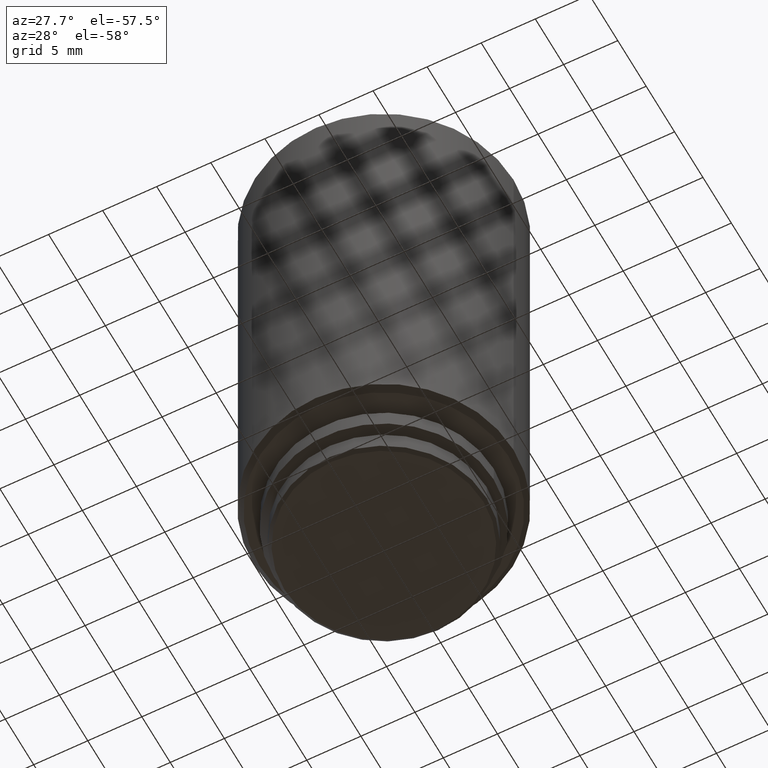
[diagram: clean part render]
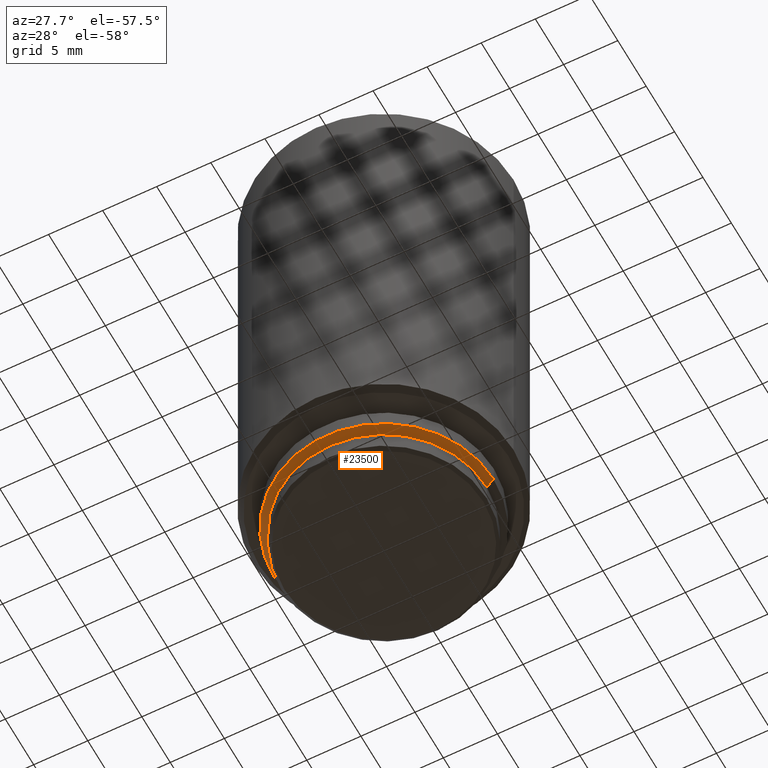
[diagram: same view with one face highlighted and labeled with its STEP entity id]
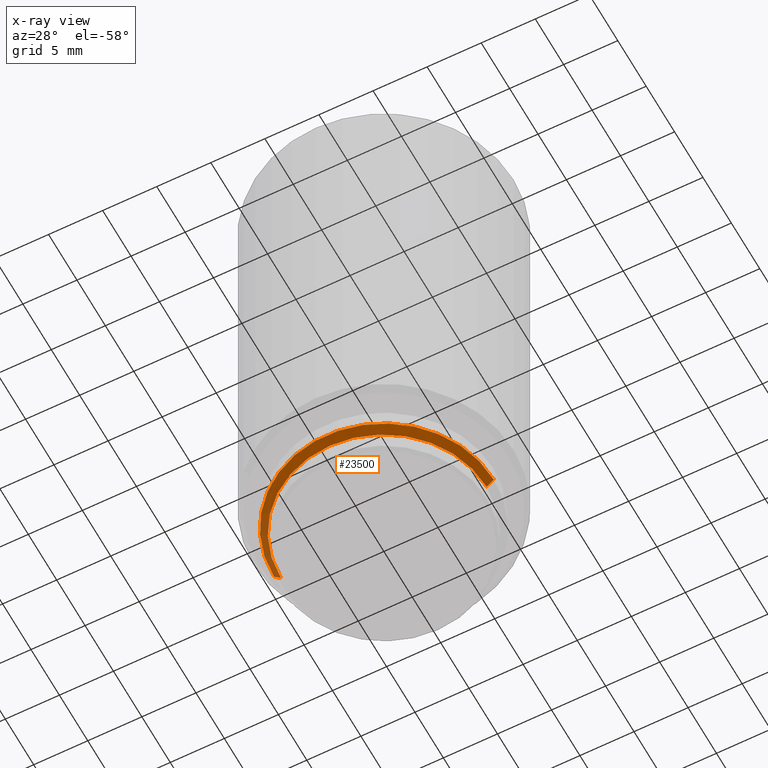
[diagram: x-ray of the same camera — body ghosted, the highlighted face saturated]
A machine part, auxiliary view. The second image highlights one B-rep face of the part: STEP entity #23500.
The next image is the same camera in x-ray: the body ghosted, the highlighted face saturated — about 0% of this face is hidden behind the body in this view.
In plain terms, the highlighted conical surface has half-angle 45 deg.
Its self-contained STEP definition (entity closure, byte-faithful):
#3 = CIRCLE ( 'NONE', #14254, 9.509999999999999787 ) ;
#254 = EDGE_CURVE ( 'NONE', #14415, #8758, #8194, .T. ) ;
#741 = EDGE_CURVE ( 'NONE', #8758, #12087, #24101, .T. ) ;
#889 = LINE ( 'NONE', #12477, #4421 ) ;
#3282 = CARTESIAN_POINT ( 'NONE',  ( 0.000000000000000000, 0.000000000000000000, 2.649999999999999911 ) ) ;
#4158 = AXIS2_PLACEMENT_3D ( 'NONE', #22049, #6894, #8679 ) ;
#4421 = VECTOR ( 'NONE', #10568, 1000.000000000000114 ) ;
#6024 = DIRECTION ( 'NONE',  ( -0.7071067811865489050, 8.659560562354951347E-17, 0.7071067811865460184 ) ) ;
#6894 = DIRECTION ( 'NONE',  ( 0.000000000000000000, 0.000000000000000000, 1.000000000000000000 ) ) ;
#7356 = DIRECTION ( 'NONE',  ( 0.000000000000000000, 0.000000000000000000, 1.000000000000000000 ) ) ;
#8088 = CARTESIAN_POINT ( 'NONE',  ( 0.000000000000000000, 0.000000000000000000, 2.000000000000000000 ) ) ;
#8194 = LINE ( 'NONE', #14180, #21651 ) ;
#8679 = DIRECTION ( 'NONE',  ( -1.000000000000000000, 0.000000000000000000, 0.000000000000000000 ) ) ;
#8758 = VERTEX_POINT ( 'NONE', #24225 ) ;
#10568 = DIRECTION ( 'NONE',  ( 0.7071067811865489050, 0.000000000000000000, 0.7071067811865460184 ) ) ;
#10815 = AXIS2_PLACEMENT_3D ( 'NONE', #3282, #7356, #18947 ) ;
#11760 = EDGE_LOOP ( 'NONE', ( #17879, #24251, #20270, #23482 ) ) ;
#12087 = VERTEX_POINT ( 'NONE', #12714 ) ;
#12477 = CARTESIAN_POINT ( 'NONE',  ( 10.16000000000000014, 0.000000000000000000, 2.649999999999999911 ) ) ;
#12714 = CARTESIAN_POINT ( 'NONE',  ( 10.16000000000000014, 0.000000000000000000, 2.649999999999999911 ) ) ;
#13515 = CARTESIAN_POINT ( 'NONE',  ( -9.509999999999999787, 1.204440126961421862E-15, 2.000000000000000000 ) ) ;
#14180 = CARTESIAN_POINT ( 'NONE',  ( -10.16000000000000014, 1.244241147933710864E-15, 2.649999999999999911 ) ) ;
#14254 = AXIS2_PLACEMENT_3D ( 'NONE', #8088, #25150, #15861 ) ;
#14415 = VERTEX_POINT ( 'NONE', #13515 ) ;
#14817 = CARTESIAN_POINT ( 'NONE',  ( 9.509999999999999787, 0.000000000000000000, 2.000000000000000000 ) ) ;
#15039 = VERTEX_POINT ( 'NONE', #14817 ) ;
#15861 = DIRECTION ( 'NONE',  ( -1.000000000000000000, 0.000000000000000000, 0.000000000000000000 ) ) ;
#17879 = ORIENTED_EDGE ( 'NONE', *, *, #254, .F. ) ;
#18897 = EDGE_CURVE ( 'NONE', #15039, #14415, #3, .T. ) ;
#18947 = DIRECTION ( 'NONE',  ( 1.000000000000000000, 0.000000000000000000, 0.000000000000000000 ) ) ;
#19064 = FACE_OUTER_BOUND ( 'NONE', #11760, .T. ) ;
#19476 = EDGE_CURVE ( 'NONE', #15039, #12087, #889, .T. ) ;
#20270 = ORIENTED_EDGE ( 'NONE', *, *, #19476, .T. ) ;
#21651 = VECTOR ( 'NONE', #6024, 1000.000000000000114 ) ;
#22049 = CARTESIAN_POINT ( 'NONE',  ( 0.000000000000000000, 0.000000000000000000, 2.649999999999999911 ) ) ;
#22609 = CONICAL_SURFACE ( 'NONE', #10815, 10.16000000000000014, 0.7853981633974503884 ) ;
#23482 = ORIENTED_EDGE ( 'NONE', *, *, #741, .F. ) ;
#23500 = ADVANCED_FACE ( 'NONE', ( #19064 ), #22609, .T. ) ;
#24101 = CIRCLE ( 'NONE', #4158, 10.16000000000000014 ) ;
#24225 = CARTESIAN_POINT ( 'NONE',  ( -10.16000000000000014, 1.244241147933710864E-15, 2.649999999999999911 ) ) ;
#24251 = ORIENTED_EDGE ( 'NONE', *, *, #18897, .F. ) ;
#25150 = DIRECTION ( 'NONE',  ( 0.000000000000000000, 0.000000000000000000, -1.000000000000000000 ) ) ;